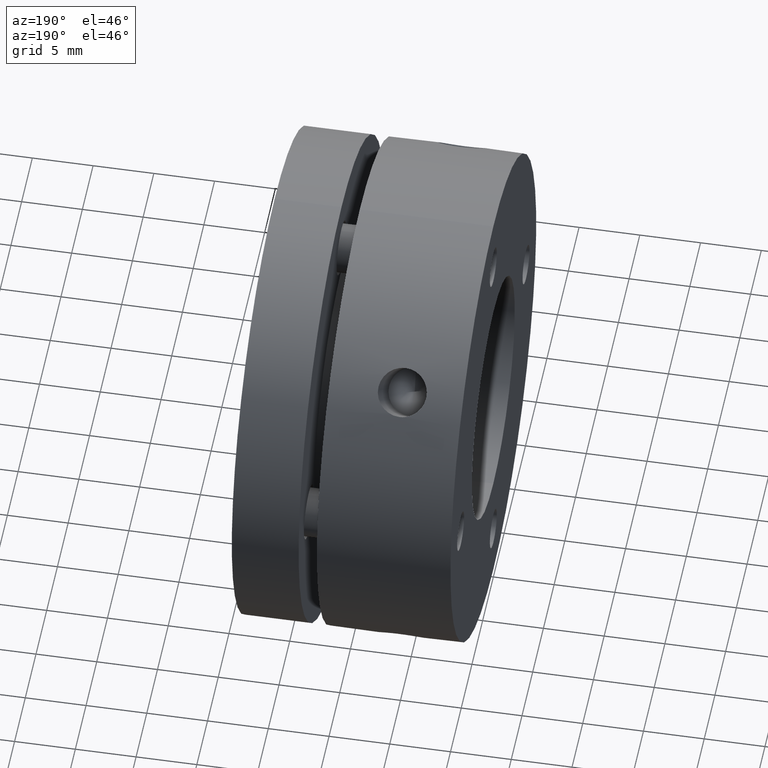
[diagram: clean part render]
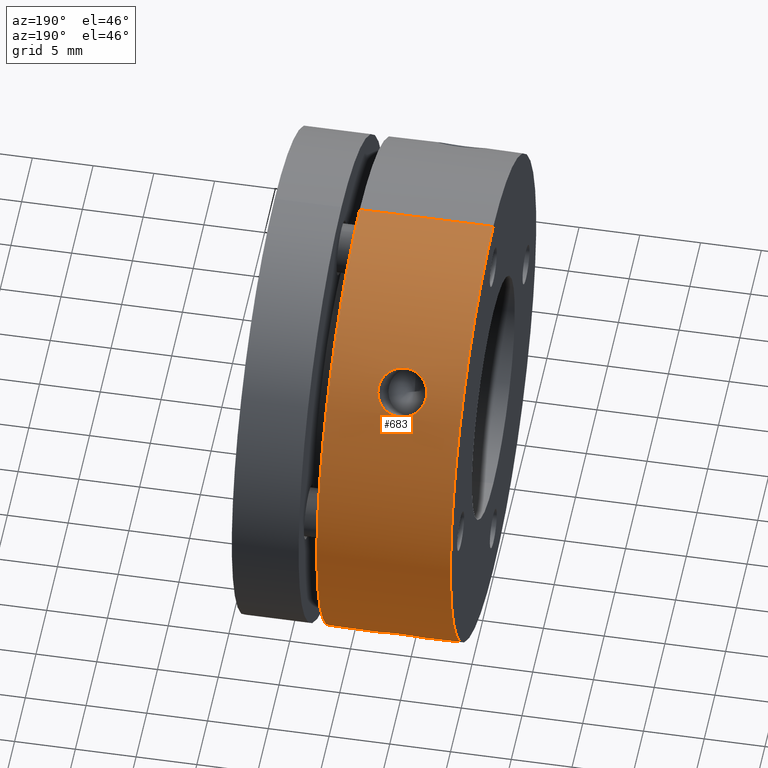
[diagram: same view with one face highlighted and labeled with its STEP entity id]
A machine part, auxiliary view. The second image highlights one B-rep face of the part: STEP entity #683.
In plain terms, the highlighted cylindrical surface (partial cylindrical patch) has radius 20 mm, axis along (1, 0, 0).
Its self-contained STEP definition (entity closure, byte-faithful):
#393 = ORIENTED_EDGE ( 'NONE', *, *, #2658, .T. ) ;
#401 = EDGE_LOOP ( 'NONE', ( #1438, #1439 ) ) ;
#416 = ORIENTED_EDGE ( 'NONE', *, *, #2657, .F. ) ;
#559 = CARTESIAN_POINT ( 'NONE',  ( 5.263082867858061700, 15.47715639983879800, 12.66721322648342300 ) ) ;
#560 = CARTESIAN_POINT ( 'NONE',  ( 3.492382192350686600, 13.17746961489520700, 15.04536654369827900 ) ) ;
#561 = CARTESIAN_POINT ( 'NONE',  ( 5.519583333467990900, 15.44453428430834700, 12.70696745455388500 ) ) ;
#562 = CARTESIAN_POINT ( 'NONE',  ( 3.679088730064606700, 13.03607954910438400, 15.16803843201698300 ) ) ;
#563 = CARTESIAN_POINT ( 'NONE',  ( 5.644261715884742800, 15.42039278551241600, 12.73632692483857700 ) ) ;
#564 = CARTESIAN_POINT ( 'NONE',  ( 5.886438439826274100, 15.35604394686600400, 12.81383828123998800 ) ) ;
#565 = CARTESIAN_POINT ( 'NONE',  ( 6.003401324175806400, 15.31573137723821700, 12.86210131028086900 ) ) ;
#566 = CARTESIAN_POINT ( 'NONE',  ( 3.780052964480012300, 12.97302515768853400, 15.22188871197323900 ) ) ;
#567 = CARTESIAN_POINT ( 'NONE',  ( 6.219948833574132000, 15.22188782678849300, 12.97302619762700400 ) ) ;
#568 = CARTESIAN_POINT ( 'NONE',  ( 6.320913197820135400, 15.16803734004963800, 13.03608082157918000 ) ) ;
#569 = CARTESIAN_POINT ( 'NONE',  ( 6.507619759210721000, 15.04536508674757700, 13.17747128027079400 ) ) ;
#570 = CARTESIAN_POINT ( 'NONE',  ( 6.590265612611523800, 14.97857342078003200, 13.25345598263035800 ) ) ;
#571 = CARTESIAN_POINT ( 'NONE',  ( 6.735026372368105600, 14.83398905896530300, 13.41508575461654500 ) ) ;
#572 = CARTESIAN_POINT ( 'NONE',  ( 3.102048775255824800, 13.67955702658993800, 14.59055881511699200 ) ) ;
#573 = CARTESIAN_POINT ( 'NONE',  ( 3.996600252386418400, 12.86210062159850100, 15.31573195448370900 ) ) ;
#574 = CARTESIAN_POINT ( 'NONE',  ( 3.494572907069231100, 15.04690158060390300, 13.17570794681569900 ) ) ;
#575 = CARTESIAN_POINT ( 'NONE',  ( 4.113563002742112400, 12.81383774583466100, 15.35604439306492000 ) ) ;
#576 = CARTESIAN_POINT ( 'NONE',  ( 4.736917588766867300, 12.66721319077642200, 15.47715642891764500 ) ) ;
#577 = CARTESIAN_POINT ( 'NONE',  ( 6.797643373992968000, 14.75526130829729100, 13.50173880556690200 ) ) ;
#578 = CARTESIAN_POINT ( 'NONE',  ( 6.897952615928014500, 14.59055603879863800, 13.67955999031264200 ) ) ;
#579 = CARTESIAN_POINT ( 'NONE',  ( 6.935768740973409200, 14.50500258340858700, 13.77030652932561400 ) ) ;
#580 = CARTESIAN_POINT ( 'NONE',  ( 6.986923494230172300, 14.32724658442800000, 13.95515844285808700 ) ) ;
#581 = CARTESIAN_POINT ( 'NONE',  ( 7.000094657496185300, 14.23459502580288600, 14.04968960824705000 ) ) ;
#582 = CARTESIAN_POINT ( 'NONE',  ( 3.410096939235482100, 14.97891944879054000, 13.25306782345986400 ) ) ;
#583 = CARTESIAN_POINT ( 'NONE',  ( 6.999904305690557200, 14.04763966793758100, 14.23661804630874200 ) ) ;
#584 = CARTESIAN_POINT ( 'NONE',  ( 6.986834506294461500, 13.95480923049298900, 14.32758341185048300 ) ) ;
#585 = CARTESIAN_POINT ( 'NONE',  ( 6.935811806957913100, 13.77048982383643900, 14.50482530382915600 ) ) ;
#586 = CARTESIAN_POINT ( 'NONE',  ( 4.355739357556200500, 12.73632665496787900, 15.42039300784231600 ) ) ;
#587 = CARTESIAN_POINT ( 'NONE',  ( 6.897231868260171000, 13.67801567374588200, 14.59200315473213300 ) ) ;
#589 = CARTESIAN_POINT ( 'NONE',  ( 6.796671994164527500, 13.50028796789040400, 14.75658814302899600 ) ) ;
#590 = CARTESIAN_POINT ( 'NONE',  ( 3.013077180552927700, 13.95515488073777800, 14.32725005127979800 ) ) ;
#591 = CARTESIAN_POINT ( 'NONE',  ( 6.735168452505297100, 13.41522748928809100, 14.83386348639439900 ) ) ;
#592 = CARTESIAN_POINT ( 'NONE',  ( 2.999905701095581200, 14.04968549639693300, 14.23459908694051100 ) ) ;
#593 = CARTESIAN_POINT ( 'NONE',  ( 6.589901107202241100, 13.25306592930823200, 14.97892112255569900 ) ) ;
#594 = CARTESIAN_POINT ( 'NONE',  ( 3.409736321517198700, 13.25345410811618100, 14.97857507712262800 ) ) ;
#596 = CARTESIAN_POINT ( 'NONE',  ( 5.130511650885694900, 15.48546084184338800, 12.65703371709719200 ) ) ;
#597 = CARTESIAN_POINT ( 'NONE',  ( 6.505425136186292300, 13.17570628470579000, 15.04690303423153400 ) ) ;
#598 = CARTESIAN_POINT ( 'NONE',  ( 6.228689918995117500, 12.96644923171808200, 15.22843729378972100 ) ) ;
#599 = CARTESIAN_POINT ( 'NONE',  ( 6.005619542363524100, 12.85193916440638700, 15.32441415937619500 ) ) ;
#600 = CARTESIAN_POINT ( 'NONE',  ( 3.064232444343875500, 13.77030336986081600, 14.50500558011876400 ) ) ;
#601 = CARTESIAN_POINT ( 'NONE',  ( 4.999999999999995600, 15.48546084184338400, 12.65703371709718900 ) ) ;
#602 = CARTESIAN_POINT ( 'NONE',  ( 3.202358361213004700, 13.50173622706063800, 14.75526366541759200 ) ) ;
#603 = CARTESIAN_POINT ( 'NONE',  ( 5.524317959946128700, 12.69798201630379500, 15.45222515779905400 ) ) ;
#604 = CARTESIAN_POINT ( 'NONE',  ( 5.261022850007889500, 12.65703371709720000, 15.48546084184338400 ) ) ;
#605 = CARTESIAN_POINT ( 'NONE',  ( 4.480417542317384000, 12.70696728375485500, 15.44453442468730000 ) ) ;
#606 = CARTESIAN_POINT ( 'NONE',  ( 4.738976698433257100, 15.48546084184338600, 12.65703371709719100 ) ) ;
#607 = CARTESIAN_POINT ( 'NONE',  ( 4.999999999999995600, 12.65703371709719400, 15.48546084184337900 ) ) ;
#611 = CARTESIAN_POINT ( 'NONE',  ( 3.000095327829497300, 14.23661439707085900, 14.04764336900352000 ) ) ;
#614 = CARTESIAN_POINT ( 'NONE',  ( 3.203326291879288400, 14.75658582791455200, 13.50029050148819600 ) ) ;
#617 = CARTESIAN_POINT ( 'NONE',  ( 3.102766714342934900, 14.59200034478803700, 13.67801867446037900 ) ) ;
#618 = CARTESIAN_POINT ( 'NONE',  ( 3.064187006049654100, 14.50482229476779000, 13.77049299589309500 ) ) ;
#622 = CARTESIAN_POINT ( 'NONE',  ( 3.013164827098201700, 14.32757998186420600, 13.95481275460253700 ) ) ;
#623 = CARTESIAN_POINT ( 'NONE',  ( 4.999999999999995600, 15.48546084184338400, 12.65703371709718900 ) ) ;
#626 = CARTESIAN_POINT ( 'NONE',  ( 4.475681139715057100, 15.45222504277273700, 12.69798215892736300 ) ) ;
#627 = CARTESIAN_POINT ( 'NONE',  ( 4.738976698433255300, 12.65703371709719400, -15.48546084184338900 ) ) ;
#629 = CARTESIAN_POINT ( 'NONE',  ( 3.994378860079518900, 15.32441361107858800, 12.85193982080214600 ) ) ;
#632 = CARTESIAN_POINT ( 'NONE',  ( 3.264829731463590300, 14.83386139600082600, 13.41522980313117900 ) ) ;
#633 = CARTESIAN_POINT ( 'NONE',  ( 4.999999999999995600, 12.65703371709719100, -15.48546084184338200 ) ) ;
#634 = CARTESIAN_POINT ( 'NONE',  ( 3.264975453359103300, 13.41508343114511200, 14.83399115788993000 ) ) ;
#636 = CARTESIAN_POINT ( 'NONE',  ( 3.771308249610303000, 15.22843643248006300, 12.96645025157480000 ) ) ;
#683 = ADVANCED_FACE ( 'NONE', ( #1072, #1074, #1076 ), #1080, .T. ) ;
#701 = CARTESIAN_POINT ( 'NONE',  ( 6.999904305690558100, 14.23661804630874200, -14.04763966793759000 ) ) ;
#703 = CARTESIAN_POINT ( 'NONE',  ( 8.999999999999994700, 2.449293598294706100E-015, 19.99999999999999600 ) ) ;
#707 = CARTESIAN_POINT ( 'NONE',  ( 6.986834506294461500, 14.32758341185048100, -13.95480923049298700 ) ) ;
#710 = CARTESIAN_POINT ( 'NONE',  ( 6.935811806957913100, 14.50482530382915200, -13.77048982383643500 ) ) ;
#711 = DIRECTION ( 'NONE',  ( 0.0000000000000000000, 0.0000000000000000000, -1.000000000000000000 ) ) ;
#712 = CARTESIAN_POINT ( 'NONE',  ( 6.735168452505297900, 14.83386348639440100, -13.41522748928808900 ) ) ;
#713 = CARTESIAN_POINT ( 'NONE',  ( 5.524317959946130500, 15.45222515779905100, -12.69798201630379200 ) ) ;
#717 = CARTESIAN_POINT ( 'NONE',  ( 6.796671994164527500, 14.75658814302899000, -13.50028796789039700 ) ) ;
#719 = CARTESIAN_POINT ( 'NONE',  ( 6.897231868260170100, 14.59200315473213100, -13.67801567374587900 ) ) ;
#724 = CARTESIAN_POINT ( 'NONE',  ( 6.505425136186291400, 15.04690303423154100, -13.17570628470578600 ) ) ;
#725 = CARTESIAN_POINT ( 'NONE',  ( 4.475681139715054400, 12.69798215892736700, -15.45222504277273500 ) ) ;
#726 = CARTESIAN_POINT ( 'NONE',  ( 3.994378860079516300, 12.85193982080214600, -15.32441361107858300 ) ) ;
#727 = CARTESIAN_POINT ( 'NONE',  ( 3.771308249610299400, 12.96645025157480200, -15.22843643248006100 ) ) ;
#728 = CARTESIAN_POINT ( 'NONE',  ( 3.494572907069229300, 13.17570794681570400, -15.04690158060389900 ) ) ;
#729 = CARTESIAN_POINT ( 'NONE',  ( 3.410096939235480300, 13.25306782345986200, -14.97891944879053800 ) ) ;
#730 = CARTESIAN_POINT ( 'NONE',  ( 3.264829731463589900, 13.41522980313118300, -14.83386139600082200 ) ) ;
#731 = CARTESIAN_POINT ( 'NONE',  ( 3.203326291879288400, 13.50029050148819600, -14.75658582791454700 ) ) ;
#732 = CARTESIAN_POINT ( 'NONE',  ( 3.102766714342934900, 13.67801867446037900, -14.59200034478803700 ) ) ;
#733 = CARTESIAN_POINT ( 'NONE',  ( 3.064187006049654100, 13.77049299589309700, -14.50482229476778100 ) ) ;
#734 = CARTESIAN_POINT ( 'NONE',  ( 3.013164827098201700, 13.95481275460253700, -14.32757998186420200 ) ) ;
#735 = CARTESIAN_POINT ( 'NONE',  ( 3.000095327829497300, 14.04764336900352500, -14.23661439707085900 ) ) ;
#736 = CARTESIAN_POINT ( 'NONE',  ( 2.999905701095581200, 14.23459908694051100, -14.04968549639693400 ) ) ;
#737 = CARTESIAN_POINT ( 'NONE',  ( 3.013077180552929100, 14.32725005127980100, -13.95515488073777800 ) ) ;
#738 = CARTESIAN_POINT ( 'NONE',  ( 3.064232444343876000, 14.50500558011876600, -13.77030336986081200 ) ) ;
#739 = CARTESIAN_POINT ( 'NONE',  ( 3.102048775255823900, 14.59055881511699600, -13.67955702658993800 ) ) ;
#740 = CARTESIAN_POINT ( 'NONE',  ( 3.202358361213002900, 14.75526366541759200, -13.50173622706064000 ) ) ;
#741 = CARTESIAN_POINT ( 'NONE',  ( 3.264975453359102000, 14.83399115788992600, -13.41508343114511000 ) ) ;
#742 = CARTESIAN_POINT ( 'NONE',  ( 3.409736321517197900, 14.97857507712262900, -13.25345410811617700 ) ) ;
#743 = CARTESIAN_POINT ( 'NONE',  ( 3.492382192350686100, 15.04536654369828400, -13.17746961489520500 ) ) ;
#744 = CARTESIAN_POINT ( 'NONE',  ( 3.679088730064606700, 15.16803843201698500, -13.03607954910438400 ) ) ;
#745 = CARTESIAN_POINT ( 'NONE',  ( 3.780052964480012300, 15.22188871197323900, -12.97302515768853000 ) ) ;
#746 = CARTESIAN_POINT ( 'NONE',  ( 6.589901107202241100, 14.97892112255569500, -13.25306592930823000 ) ) ;
#747 = CARTESIAN_POINT ( 'NONE',  ( 3.996600252386418400, 15.31573195448371300, -12.86210062159850100 ) ) ;
#748 = CARTESIAN_POINT ( 'NONE',  ( 4.113563002742112400, 15.35604439306492200, -12.81383774583466100 ) ) ;
#749 = CARTESIAN_POINT ( 'NONE',  ( 4.355739357556201300, 15.42039300784231600, -12.73632665496787900 ) ) ;
#750 = CARTESIAN_POINT ( 'NONE',  ( 4.480417542317384900, 15.44453442468730100, -12.70696728375484800 ) ) ;
#751 = CARTESIAN_POINT ( 'NONE',  ( 4.736917588766865500, 15.47715642891764700, -12.66721319077642100 ) ) ;
#753 = CARTESIAN_POINT ( 'NONE',  ( 4.999999999999995600, 12.65703371709719400, 15.48546084184337900 ) ) ;
#754 = CARTESIAN_POINT ( 'NONE',  ( 4.869488575098372100, 12.65703371709719800, 15.48546084184337900 ) ) ;
#758 = CARTESIAN_POINT ( 'NONE',  ( 4.999999999999995600, 15.48546084184338100, -12.65703371709719200 ) ) ;
#759 = CARTESIAN_POINT ( 'NONE',  ( 5.261022850007891300, 15.48546084184338400, -12.65703371709719400 ) ) ;
#770 = CARTESIAN_POINT ( 'NONE',  ( 6.005619542363523200, 15.32441415937619500, -12.85193916440638500 ) ) ;
#775 = CARTESIAN_POINT ( 'NONE',  ( 6.228689918995115700, 15.22843729378972500, -12.96644923171807500 ) ) ;
#782 = CARTESIAN_POINT ( 'NONE',  ( 6.986923494230173200, 13.95515844285809400, -14.32724658442800500 ) ) ;
#788 = CARTESIAN_POINT ( 'NONE',  ( 5.263082867858060800, 12.66721322648342400, -15.47715639983879800 ) ) ;
#793 = CARTESIAN_POINT ( 'NONE',  ( 6.897952615928012700, 13.67955999031264500, -14.59055603879864200 ) ) ;
#833 = CARTESIAN_POINT ( 'NONE',  ( 8.999999999999994700, 0.0000000000000000000, -19.99999999999999600 ) ) ;
#840 = DIRECTION ( 'NONE',  ( 1.000000000000000000, 0.0000000000000000000, 0.0000000000000000000 ) ) ;
#847 = CARTESIAN_POINT ( 'NONE',  ( 4.869488575098373000, 15.48546084184338600, -12.65703371709719800 ) ) ;
#851 = CARTESIAN_POINT ( 'NONE',  ( 11.00000000000000000, 0.0000000000000000000, 0.0000000000000000000 ) ) ;
#854 = DIRECTION ( 'NONE',  ( -1.000000000000000000, -0.0000000000000000000, -0.0000000000000000000 ) ) ;
#861 = DIRECTION ( 'NONE',  ( 0.0000000000000000000, 0.0000000000000000000, -1.000000000000000000 ) ) ;
#870 = CARTESIAN_POINT ( 'NONE',  ( 4.999999999999995600, 12.65703371709719100, -15.48546084184338200 ) ) ;
#875 = CARTESIAN_POINT ( 'NONE',  ( 4.999999999999995600, 15.48546084184338100, -12.65703371709719200 ) ) ;
#877 = CARTESIAN_POINT ( 'NONE',  ( 5.130511650885694900, 12.65703371709719400, -15.48546084184338900 ) ) ;
#878 = CARTESIAN_POINT ( 'NONE',  ( 5.519583333467987400, 12.70696745455388300, -15.44453428430834700 ) ) ;
#887 = DIRECTION ( 'NONE',  ( 1.000000000000000000, 0.0000000000000000000, 0.0000000000000000000 ) ) ;
#892 = CARTESIAN_POINT ( 'NONE',  ( 5.644261715884741000, 12.73632692483857900, -15.42039278551241200 ) ) ;
#894 = CARTESIAN_POINT ( 'NONE',  ( 5.886438439826274100, 12.81383828123998600, -15.35604394686600400 ) ) ;
#898 = CARTESIAN_POINT ( 'NONE',  ( 6.003401324175806400, 12.86210131028087000, -15.31573137723821500 ) ) ;
#900 = CARTESIAN_POINT ( 'NONE',  ( 6.219948833574132900, 12.97302619762700700, -15.22188782678849100 ) ) ;
#902 = CARTESIAN_POINT ( 'NONE',  ( 6.320913197820135400, 13.03608082157918200, -15.16803734004963600 ) ) ;
#906 = CARTESIAN_POINT ( 'NONE',  ( 6.507619759210721000, 13.17747128027080300, -15.04536508674757800 ) ) ;
#909 = CARTESIAN_POINT ( 'NONE',  ( 6.590265612611523800, 13.25345598263035800, -14.97857342078002900 ) ) ;
#910 = CARTESIAN_POINT ( 'NONE',  ( -5.204170427930421300E-015, 0.0000000000000000000, 0.0000000000000000000 ) ) ;
#911 = CARTESIAN_POINT ( 'NONE',  ( 6.735026372368105600, 13.41508575461655000, -14.83398905896530600 ) ) ;
#912 = DIRECTION ( 'NONE',  ( 1.000000000000000000, 0.0000000000000000000, 0.0000000000000000000 ) ) ;
#915 = CARTESIAN_POINT ( 'NONE',  ( 6.935768740973408300, 13.77030652932561600, -14.50500258340859200 ) ) ;
#917 = CARTESIAN_POINT ( 'NONE',  ( 6.797643373992968000, 13.50173880556690300, -14.75526130829728900 ) ) ;
#919 = CARTESIAN_POINT ( 'NONE',  ( 7.000094657496186200, 14.04968960824705300, -14.23459502580289100 ) ) ;
#1072 = FACE_BOUND ( 'NONE', #401, .T. ) ;
#1074 = FACE_BOUND ( 'NONE', #2136, .T. ) ;
#1076 = FACE_OUTER_BOUND ( 'NONE', #2134, .T. ) ;
#1080 = CYLINDRICAL_SURFACE ( 'NONE', #2453, 19.99999999999999600 ) ;
#1286 = VERTEX_POINT ( 'NONE', #1961 ) ;
#1317 = VERTEX_POINT ( 'NONE', #1946 ) ;
#1325 = VERTEX_POINT ( 'NONE', #1939 ) ;
#1340 = VERTEX_POINT ( 'NONE', #1926 ) ;
#1349 = VERTEX_POINT ( 'NONE', #1925 ) ;
#1357 = VERTEX_POINT ( 'NONE', #1919 ) ;
#1374 = VERTEX_POINT ( 'NONE', #1913 ) ;
#1411 = VERTEX_POINT ( 'NONE', #1892 ) ;
#1437 = ORIENTED_EDGE ( 'NONE', *, *, #2661, .T. ) ;
#1438 = ORIENTED_EDGE ( 'NONE', *, *, #2664, .T. ) ;
#1439 = ORIENTED_EDGE ( 'NONE', *, *, #2666, .T. ) ;
#1442 = ORIENTED_EDGE ( 'NONE', *, *, #2663, .T. ) ;
#1443 = ORIENTED_EDGE ( 'NONE', *, *, #2659, .T. ) ;
#1455 = ORIENTED_EDGE ( 'NONE', *, *, #2660, .T. ) ;
#1892 = CARTESIAN_POINT ( 'NONE',  ( 4.999999999999995600, 15.48546084184338100, -12.65703371709719200 ) ) ;
#1913 = CARTESIAN_POINT ( 'NONE',  ( 4.999999999999995600, 15.48546084184338400, 12.65703371709718900 ) ) ;
#1919 = CARTESIAN_POINT ( 'NONE',  ( 4.999999999999995600, 12.65703371709719100, -15.48546084184338200 ) ) ;
#1925 = CARTESIAN_POINT ( 'NONE',  ( 11.00000000000000000, 0.0000000000000000000, -19.99999999999999600 ) ) ;
#1926 = CARTESIAN_POINT ( 'NONE',  ( 4.999999999999995600, 12.65703371709719400, 15.48546084184337900 ) ) ;
#1939 = CARTESIAN_POINT ( 'NONE',  ( -5.204170427930421300E-015, 2.449293598294706100E-015, 19.99999999999999600 ) ) ;
#1946 = CARTESIAN_POINT ( 'NONE',  ( -5.204170427930421300E-015, 0.0000000000000000000, -19.99999999999999600 ) ) ;
#1961 = CARTESIAN_POINT ( 'NONE',  ( 11.00000000000000000, 2.449293598294706100E-015, 19.99999999999999600 ) ) ;
#1984 = DIRECTION ( 'NONE',  ( 1.000000000000000000, 0.0000000000000000000, 0.0000000000000000000 ) ) ;
#1985 = CARTESIAN_POINT ( 'NONE',  ( 8.999999999999994700, 0.0000000000000000000, 0.0000000000000000000 ) ) ;
#1986 = DIRECTION ( 'NONE',  ( 0.0000000000000000000, 0.0000000000000000000, -1.000000000000000000 ) ) ;
#2134 = EDGE_LOOP ( 'NONE', ( #1455, #1443, #393, #416 ) ) ;
#2136 = EDGE_LOOP ( 'NONE', ( #1442, #1437 ) ) ;
#2232 = AXIS2_PLACEMENT_3D ( 'NONE', #851, #854, #861 ) ;
#2233 = AXIS2_PLACEMENT_3D ( 'NONE', #910, #912, #711 ) ;
#2453 = AXIS2_PLACEMENT_3D ( 'NONE', #1985, #1984, #1986 ) ;
#2657 = EDGE_CURVE ( 'NONE', #1317, #1349, #2884, .T. ) ;
#2658 = EDGE_CURVE ( 'NONE', #1286, #1349, #2887, .T. ) ;
#2659 = EDGE_CURVE ( 'NONE', #1325, #1286, #2886, .T. ) ;
#2660 = EDGE_CURVE ( 'NONE', #1317, #1325, #2890, .T. ) ;
#2661 = EDGE_CURVE ( 'NONE', #1357, #1411, #3233, .T. ) ;
#2663 = EDGE_CURVE ( 'NONE', #1411, #1357, #3230, .T. ) ;
#2664 = EDGE_CURVE ( 'NONE', #1340, #1374, #3226, .T. ) ;
#2666 = EDGE_CURVE ( 'NONE', #1374, #1340, #3229, .T. ) ;
#2884 = LINE ( 'NONE', #833, #2888 ) ;
#2886 = LINE ( 'NONE', #703, #2891 ) ;
#2887 = CIRCLE ( 'NONE', #2232, 19.99999999999999600 ) ;
#2888 = VECTOR ( 'NONE', #840, 1000.000000000000000 ) ;
#2890 = CIRCLE ( 'NONE', #2233, 19.99999999999999600 ) ;
#2891 = VECTOR ( 'NONE', #887, 1000.000000000000000 ) ;
#3226 = B_SPLINE_CURVE_WITH_KNOTS ( 'NONE', 3,
 ( #753, #754, #576, #605, #586, #575, #573, #566, #562, #560, #594, #634, #602, #572, #600, #590, #592, #611, #622, #618, #617, #614, #632, #582, #574, #636, #629, #626, #606, #601 ),
 .UNSPECIFIED., .F., .F.,
 ( 4, 2, 2, 2, 2, 2, 2, 2, 2, 2, 2, 2, 2, 2, 4 ),
 ( 0.009384575742887962100, 0.009775540807865150700, 0.01016650587284233800, 0.01055747093781952600, 0.01094843600279671500, 0.01133940106777390200, 0.01173036613275109000, 0.01212133119772827900, 0.01251229626270546800, 0.01290326132768265500, 0.01329422639265984100, 0.01368519145763703200, 0.01407615652261421900, 0.01485808665256859400, 0.01564001678252297000 ),
 .UNSPECIFIED. ) ;
#3229 = B_SPLINE_CURVE_WITH_KNOTS ( 'NONE', 3,
 ( #623, #596, #559, #561, #563, #564, #565, #567, #568, #569, #570, #571, #577, #578, #579, #580, #581, #583, #584, #585, #587, #589, #591, #593, #597, #598, #599, #603, #604, #607 ),
 .UNSPECIFIED., .F., .F.,
 ( 4, 2, 2, 2, 2, 2, 2, 2, 2, 2, 2, 2, 2, 2, 4 ),
 ( 0.003129134698348426400, 0.003520099763632147600, 0.003911064828915868800, 0.004302029894199590000, 0.004692994959483311200, 0.005083960024767033300, 0.005474925090050754500, 0.005865890155334475700, 0.006256855220618196900, 0.006647820285901918100, 0.007038785351185640100, 0.007429750416469361300, 0.007820715481753082500, 0.008602645612320523200, 0.009384575742887962100 ),
 .UNSPECIFIED. ) ;
#3230 = B_SPLINE_CURVE_WITH_KNOTS ( 'NONE', 3,
 ( #875, #847, #751, #750, #749, #748, #747, #745, #744, #743, #742, #741, #740, #739, #738, #737, #736, #735, #734, #733, #732, #731, #730, #729, #728, #727, #726, #725, #627, #633 ),
 .UNSPECIFIED., .F., .F.,
 ( 4, 2, 2, 2, 2, 2, 2, 2, 2, 2, 2, 2, 2, 2, 4 ),
 ( 0.009384575742887953400, 0.009775540807865142100, 0.01016650587284232900, 0.01055747093781951800, 0.01094843600279670600, 0.01133940106777389300, 0.01173036613275108200, 0.01212133119772826900, 0.01251229626270545700, 0.01290326132768264400, 0.01329422639265983300, 0.01368519145763702100, 0.01407615652261420800, 0.01485808665256858500, 0.01564001678252295900 ),
 .UNSPECIFIED. ) ;
#3233 = B_SPLINE_CURVE_WITH_KNOTS ( 'NONE', 3,
 ( #870, #877, #788, #878, #892, #894, #898, #900, #902, #906, #909, #911, #917, #793, #915, #782, #919, #701, #707, #710, #719, #717, #712, #746, #724, #775, #770, #713, #759, #758 ),
 .UNSPECIFIED., .F., .F.,
 ( 4, 2, 2, 2, 2, 2, 2, 2, 2, 2, 2, 2, 2, 2, 4 ),
 ( 0.003129134698348424700, 0.003520099763632144600, 0.003911064828915864500, 0.004302029894199583900, 0.004692994959483304300, 0.005083960024767023700, 0.005474925090050743200, 0.005865890155334463500, 0.006256855220618183800, 0.006647820285901903300, 0.007038785351185622800, 0.007429750416469343100, 0.007820715481753063400, 0.008602645612320509300, 0.009384575742887953400 ),
 .UNSPECIFIED. ) ;